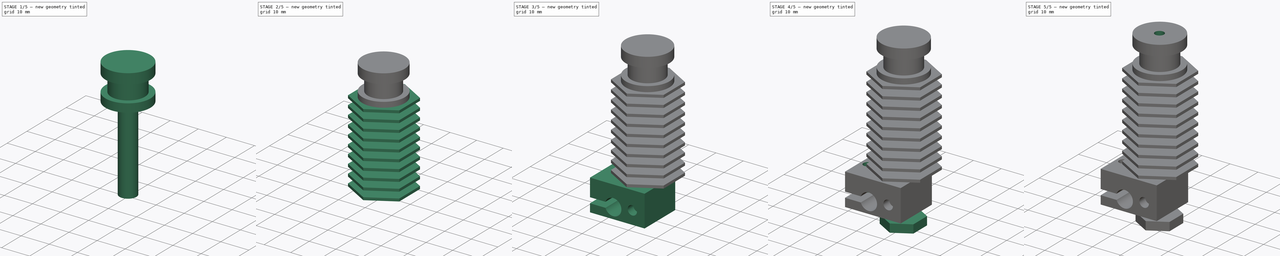
[diagram: build sequence overview — one tinted view per stage of 5, left to right]
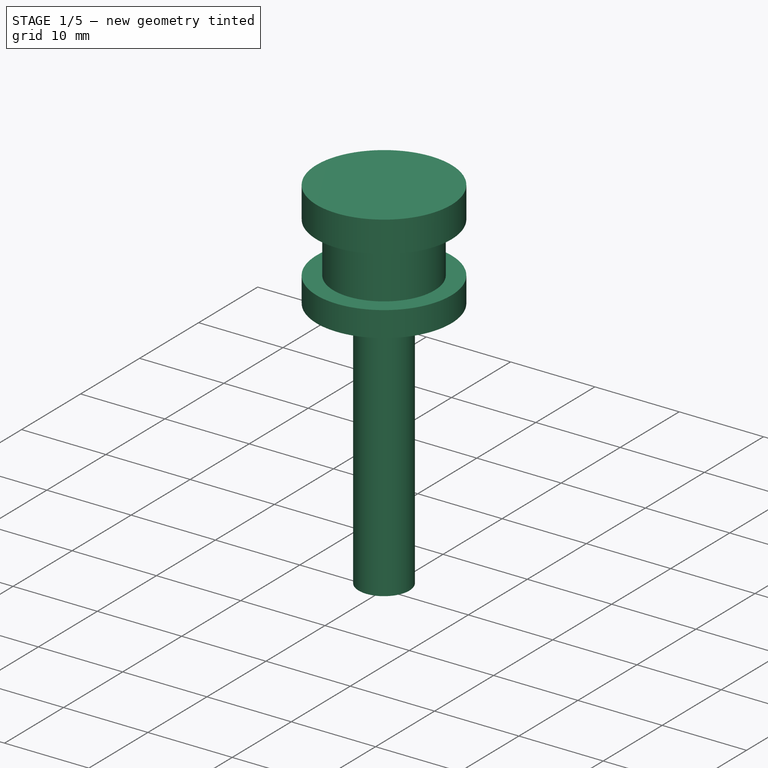
[diagram: stage 1 of 5 — iso view after this stage's code; geometry added in this stage tinted green]
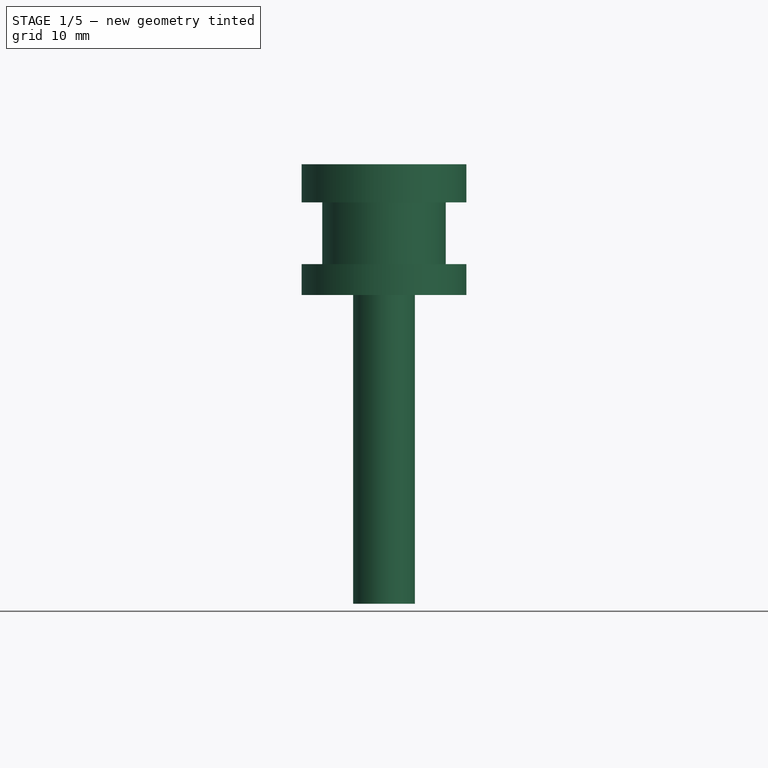
[diagram: stage 1 of 5 — front view after this stage's code; geometry added in this stage tinted green]
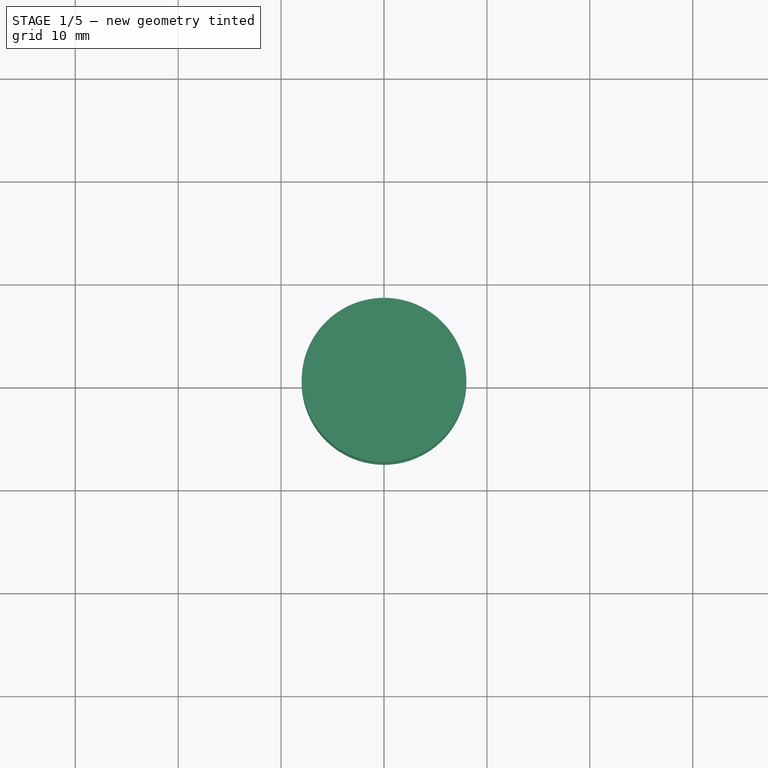
[diagram: stage 1 of 5 — top view after this stage's code; geometry added in this stage tinted green]
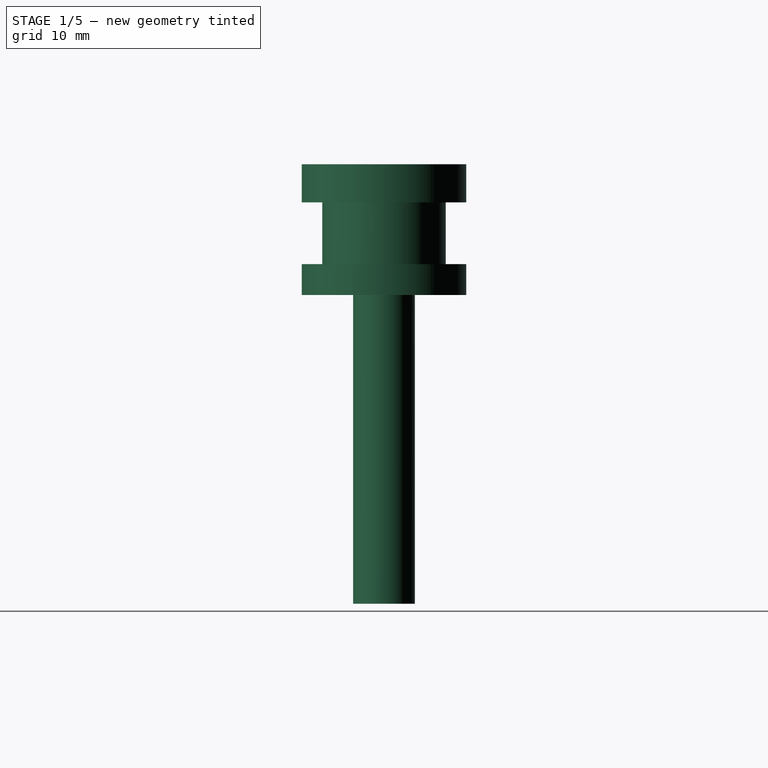
[diagram: stage 1 of 5 — right view after this stage's code; geometry added in this stage tinted green]
FCSTD DOCUMENT  (FreeCAD 0.15R4671 (Git))
Label: Hotend-3d-printer
License: All rights reserved
LicenseURL: http://en.wikipedia.org/wiki/All_rights_reserved
objects: Sketcher::SketchObject×16, PartDesign::Pad×10, PartDesign::Pocket×6, PartDesign::LinearPattern×1, PartDesign::Chamfer×1
note: 50 computed .brp shape members not serialized (recipe doc carries the construction recipe); baked Part::Feature solids carry a one-line shape summary decoded from their .brp

FEATURE [Sketcher::SketchObject] Sketch
  sketch-geometry (1):
    g0: Circle CenterX=0 CenterY=0 CenterZ=0 NormalX=0 NormalY=0 NormalZ=1 Radius=8
  constraints (1):
    c: Radius(g0) = 8
FEATURE [PartDesign::Pad] Pad
  Length = 3.7
  Length2 = 100
  Sketch = -> Sketch
  Type = 0
FEATURE [Sketcher::SketchObject] Sketch001
  Placement = pos=(0,0,0) rot=(1,0,0;3.14159rad)
  Support = -> Pad [Face2]
  sketch-geometry (1):
    g0: Circle CenterX=0 CenterY=0 CenterZ=0 NormalX=0 NormalY=0 NormalZ=1 Radius=6
  constraints (2):
    c: Coincident(g0,g-1)
    c: Radius(g0) = 6
FEATURE [PartDesign::Pad] Pad001
  Length = 6
  Length2 = 100
  Sketch = -> Sketch001
  Type = 0
FEATURE [Sketcher::SketchObject] Sketch002
  Placement = pos=(0,0,-6) rot=(1,0,0;3.14159rad)
  Support = -> Pad001 [Face5]
  sketch-geometry (1):
    g0: Circle CenterX=0 CenterY=0 CenterZ=0 NormalX=0 NormalY=0 NormalZ=1 Radius=8
  constraints (2):
    c: Coincident(g0,g-1)
    c: Radius(g0) = 8
FEATURE [PartDesign::Pad] Pad002
  Length = 3
  Length2 = 100
  Sketch = -> Sketch002
  Type = 0
FEATURE [Sketcher::SketchObject] Sketch003
  Placement = pos=(0,0,-9) rot=(1,0,0;3.14159rad)
  Support = -> Pad002 [Face7]
  sketch-geometry (1):
    g0: Circle CenterX=0 CenterY=0 CenterZ=0 NormalX=0 NormalY=0 NormalZ=1 Radius=3
  constraints (2):
    c: Coincident(g0,g-1)
    c: Radius(g0) = 3
FEATURE [PartDesign::Pad] Pad003
  Length = 30
  Length2 = 100
  Sketch = -> Sketch003
  Type = 0
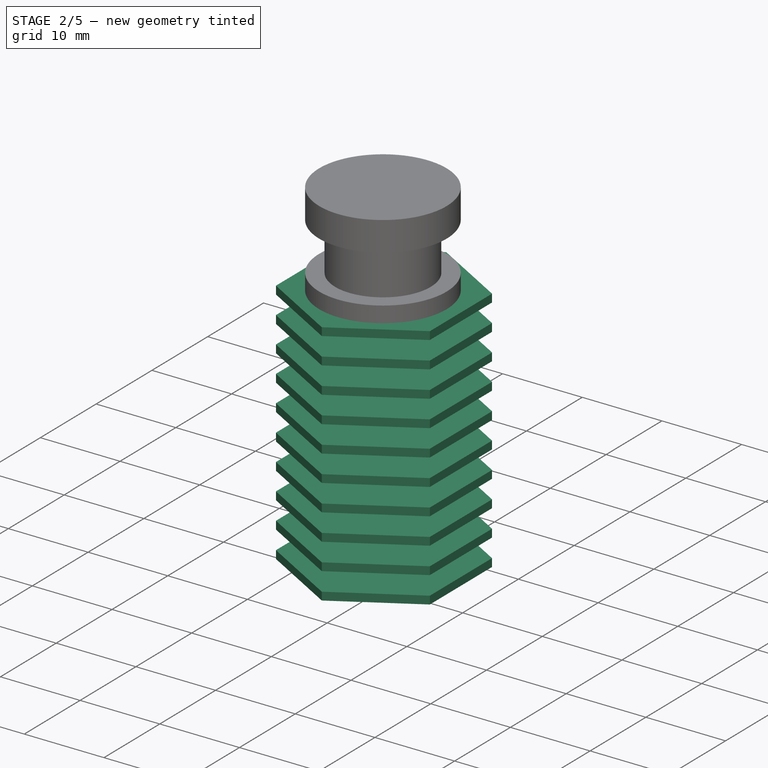
[diagram: stage 2 of 5 — iso view after this stage's code; geometry added in this stage tinted green]
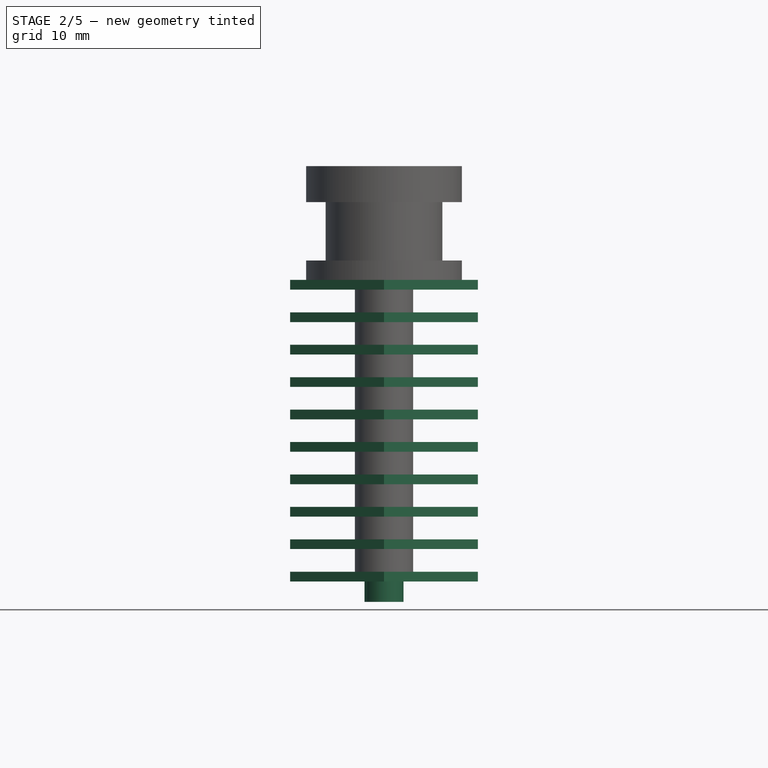
[diagram: stage 2 of 5 — front view after this stage's code; geometry added in this stage tinted green]
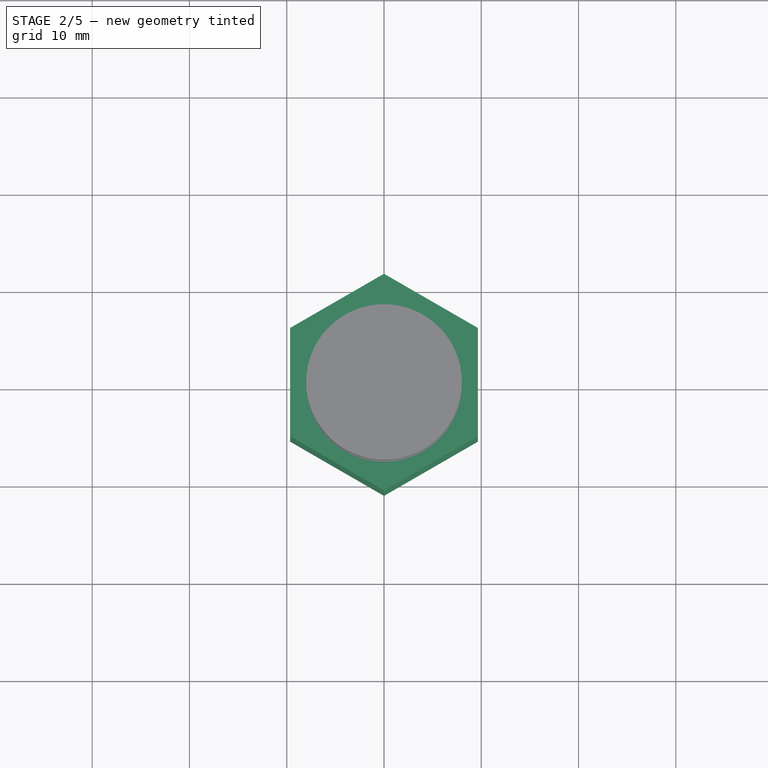
[diagram: stage 2 of 5 — top view after this stage's code; geometry added in this stage tinted green]
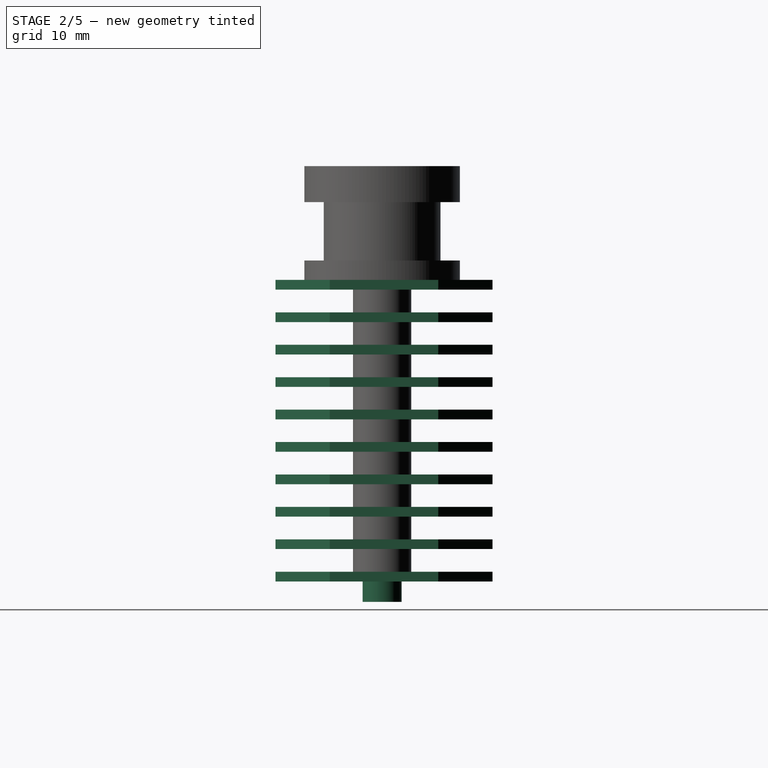
[diagram: stage 2 of 5 — right view after this stage's code; geometry added in this stage tinted green]
FEATURE [Sketcher::SketchObject] Sketch004
  Placement = pos=(0,0,-39) rot=(1,0,0;3.14159rad)
  Support = -> Pad003 [Face9]
  sketch-geometry (7):
    g0: LineSegment StartX=9.65618 StartY=-5.76845 StartZ=0 EndX=9.65618 EndY=5.38155 EndZ=0
    g1: LineSegment StartX=9.65618 StartY=5.38155 StartZ=0 EndX=0 EndY=10.9566 EndZ=0
    g2: LineSegment StartX=0 StartY=10.9566 StartZ=0 EndX=-9.65618 EndY=5.38155 EndZ=0
    g3: LineSegment StartX=-9.65618 StartY=5.38155 StartZ=0 EndX=-9.65618 EndY=-5.76845 EndZ=0
    g4: LineSegment StartX=-9.65618 StartY=-5.76845 StartZ=0 EndX=0 EndY=-11.3434 EndZ=0
    g5: LineSegment StartX=0 StartY=-11.3434 StartZ=0 EndX=9.65618 EndY=-5.76845 EndZ=0
    g6: Circle [constr] CenterX=0 CenterY=-0.193449 CenterZ=0 NormalX=0 NormalY=0 NormalZ=1 Radius=11.15
  constraints (17):
    c: Coincident(g0,g1)
    c: Coincident(g1,g2)
    c: Coincident(g2,g3)
    c: Coincident(g3,g4)
    c: Coincident(g4,g5)
    c: Coincident(g5,g0)
    c: Equal(g0, g1-g5) x5
    c: PointOnObject(g0,g6)
    c: PointOnObject(g1,g6)
    c: PointOnObject(g2,g6)
    c: PointOnObject(g3,g6)
    c: PointOnObject(g4,g6)
    c: PointOnObject(g5,g6)
    c: Coincident(g3,g-1)
    c: PointOnObject(g1,g-2)
    c: PointOnObject(g4,g-2)
    c: Radius(g6) = 11.15
FEATURE [PartDesign::Pad] Pad004  label="Ailette"
  Length = 1
  Length2 = 100
  Reversed = true
  Sketch = -> Sketch004
  Type = 0
FEATURE [PartDesign::LinearPattern] LinearPattern
  Direction = -> Pad004 [Face16]
  Length = 30
  Occurrences = 10
  Originals = -> [Pad004]
FEATURE [Sketcher::SketchObject] Sketch005
  Placement = pos=(0,0,-39) rot=(1,0,0;3.14159rad)
  Support = -> LinearPattern [Face97]
  sketch-geometry (1):
    g0: Circle CenterX=0 CenterY=0 CenterZ=0 NormalX=0 NormalY=0 NormalZ=1 Radius=2
  constraints (2):
    c: Coincident(g0,g-1)
    c: Radius(g0) = 2
FEATURE [PartDesign::Pad] Pad005
  Length = 2.1
  Length2 = 100
  Sketch = -> Sketch005
  Type = 0
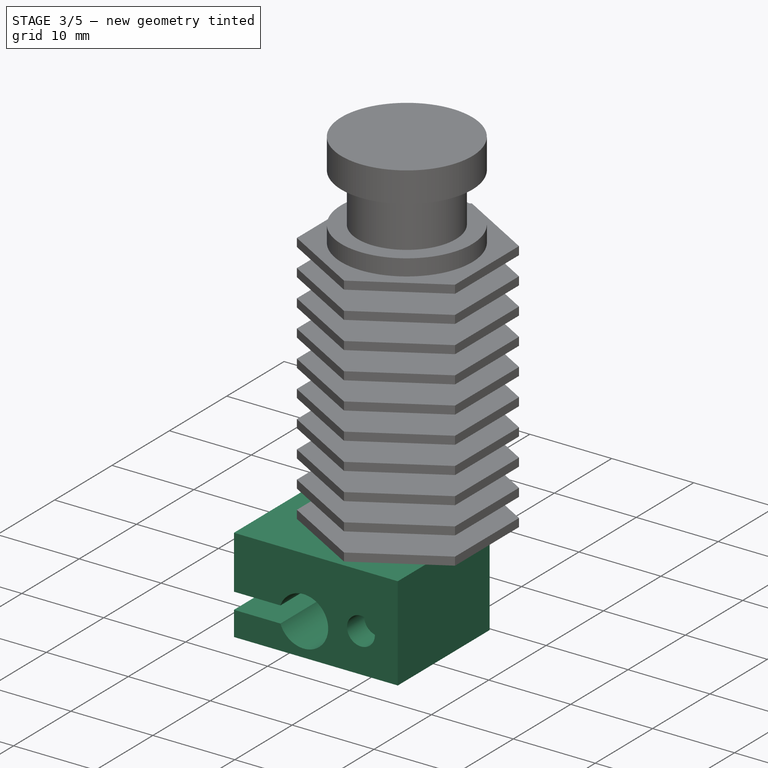
[diagram: stage 3 of 5 — iso view after this stage's code; geometry added in this stage tinted green]
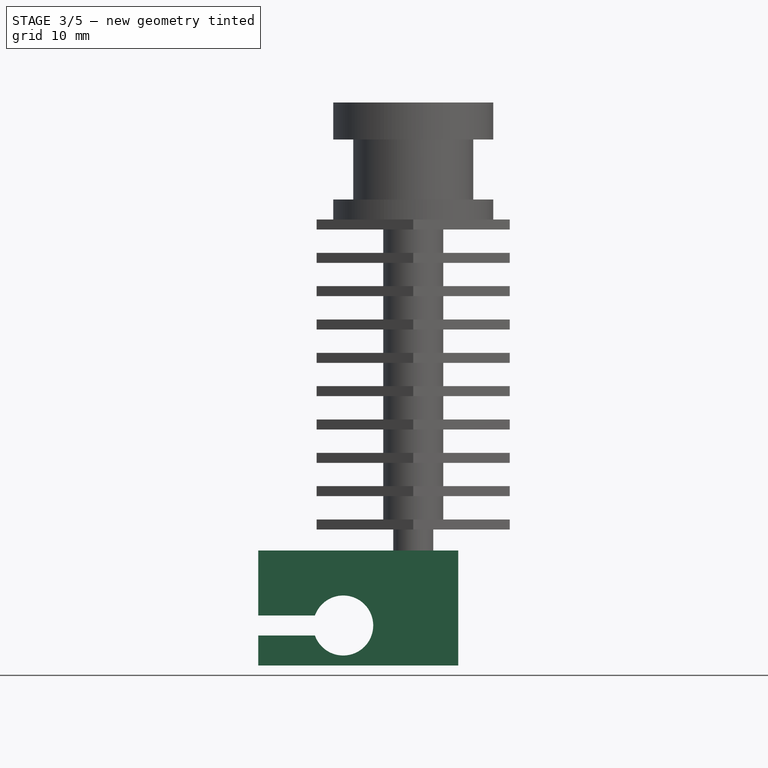
[diagram: stage 3 of 5 — front view after this stage's code; geometry added in this stage tinted green]
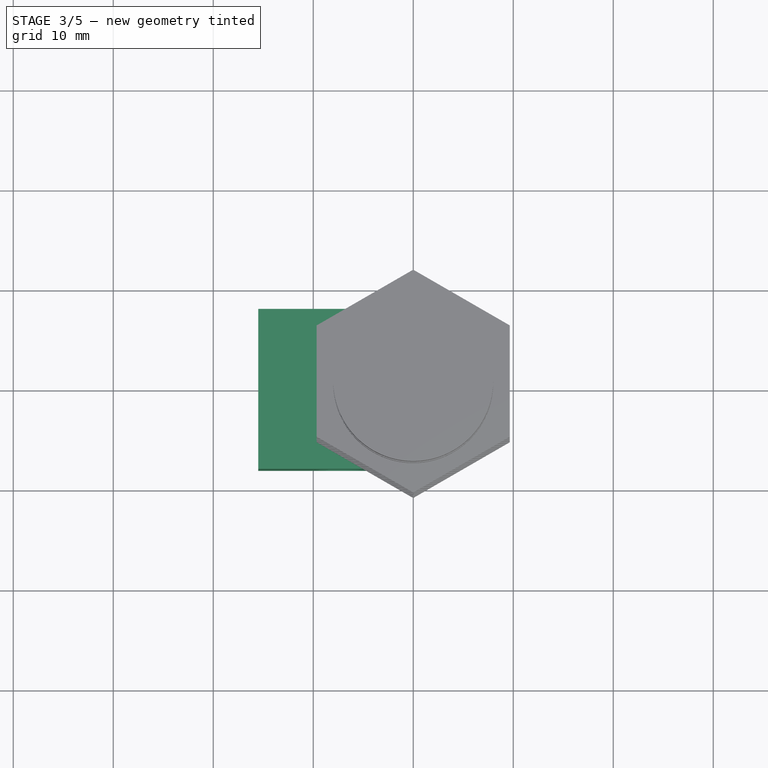
[diagram: stage 3 of 5 — top view after this stage's code; geometry added in this stage tinted green]
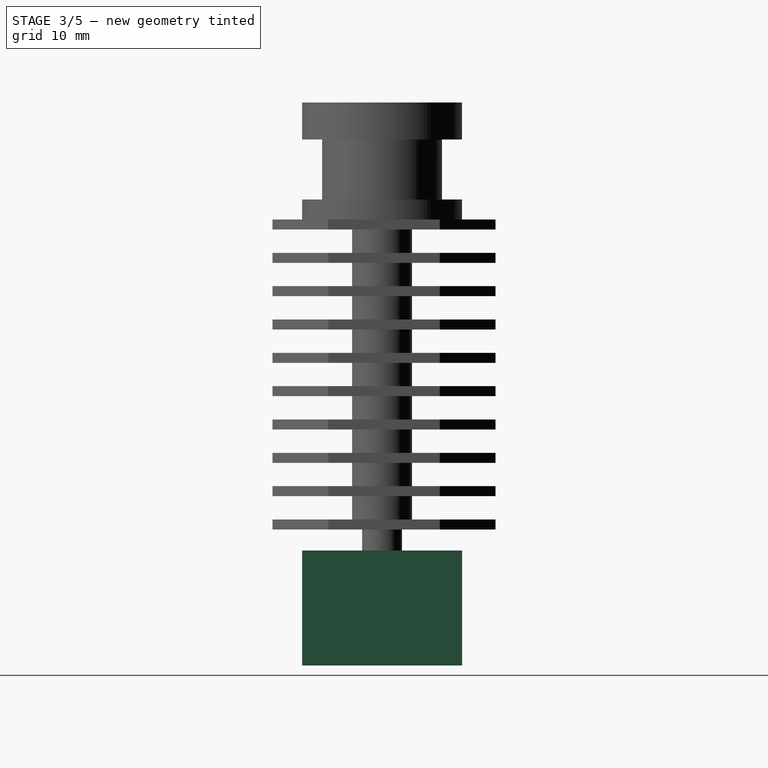
[diagram: stage 3 of 5 — right view after this stage's code; geometry added in this stage tinted green]
FEATURE [Sketcher::SketchObject] Sketch006
  Placement = pos=(0,0,-41.1) rot=(1,0,0;3.14159rad)
  Support = -> Pad005 [Face99]
  sketch-geometry (4):
    g0: LineSegment StartX=-15.5 StartY=8 StartZ=0 EndX=4.5 EndY=8 EndZ=0
    g1: LineSegment StartX=4.5 StartY=8 StartZ=0 EndX=4.5 EndY=-8 EndZ=0
    g2: LineSegment StartX=4.5 StartY=-8 StartZ=0 EndX=-15.5 EndY=-8 EndZ=0
    g3: LineSegment StartX=-15.5 StartY=-8 StartZ=0 EndX=-15.5 EndY=8 EndZ=0
  constraints (12):
    c: Coincident(g0,g1)
    c: Coincident(g1,g2)
    c: Coincident(g2,g3)
    c: Coincident(g3,g0)
    c: Horizontal(g0)
    c: Horizontal(g2)
    c: Vertical(g1)
    c: Vertical(g3)
    c: DistanceY(g-1,g0) = 8
    c: DistanceX(g2,g1) = 20
    c: DistanceY(g2,g0) = 16
    c: DistanceX(g-1,g0) = 4.5
FEATURE [PartDesign::Pad] Pad006
  Length = 11.5
  Length2 = 100
  Sketch = -> Sketch006
  Type = 0
FEATURE [Sketcher::SketchObject] Sketch007
  ExternalGeometry = -> [Pad006]
  Placement = pos=(0,-8,0) rot=(1,0,0;1.5708rad)
  Support = -> Pad006 [Face100]
  sketch-geometry (1):
    g0: Circle CenterX=-7 CenterY=-48.6 CenterZ=0 NormalX=0 NormalY=0 NormalZ=1 Radius=3
  constraints (3):
    c: Radius(g0) = 3
    c: DistanceX(g0,g-3) = 11.5
    c: DistanceY(g0,g-4) = -4
FEATURE [PartDesign::Pocket] Pocket
  Length = 5
  Sketch = -> Sketch007
  Type = 1
FEATURE [Sketcher::SketchObject] Sketch008
  ExternalGeometry = -> [Pocket]
  Placement = pos=(0,-8,0) rot=(1,0,0;1.5708rad)
  Support = -> Pocket [Face100]
  sketch-geometry (1):
    g0: Circle CenterX=0 CenterY=-47.8 CenterZ=0 NormalX=0 NormalY=0 NormalZ=1 Radius=1.7
  constraints (3):
    c: PointOnObject(g0,g-2)
    c: Radius(g0) = 1.7
    c: DistanceY(g0,g-3) = -4.8
FEATURE [PartDesign::Pocket] Pocket001
  Length = 3
  Sketch = -> Sketch008
  Type = 0
FEATURE [Sketcher::SketchObject] Sketch009
  ExternalGeometry = -> [Pocket001]
  Placement = pos=(-15.5,0,0) rot=(0.57735,-0.57735,-0.57735;2.0944rad)
  Support = -> Pocket001 [Face101]
  sketch-geometry (4):
    g0: LineSegment StartX=-8 StartY=-47.6 StartZ=0 EndX=8 EndY=-47.6 EndZ=0
    g1: LineSegment StartX=8 StartY=-47.6 StartZ=0 EndX=8 EndY=-49.6 EndZ=0
    g2: LineSegment StartX=8 StartY=-49.6 StartZ=0 EndX=-8 EndY=-49.6 EndZ=0
    g3: LineSegment StartX=-8 StartY=-49.6 StartZ=0 EndX=-8 EndY=-47.6 EndZ=0
  constraints (12):
    c: Coincident(g0,g1)
    c: Coincident(g1,g2)
    c: Coincident(g2,g3)
    c: Coincident(g3,g0)
    c: Horizontal(g0)
    c: Horizontal(g2)
    c: Vertical(g1)
    c: Vertical(g3)
    c: PointOnObject(g0,g-3)
    c: PointOnObject(g1,g-4)
    c: DistanceY(g2,g-3) = -3
    c: DistanceY(g2,g0) = 2
FEATURE [PartDesign::Pocket] Pocket002
  Length = 6
  Sketch = -> Sketch009
  Type = 0
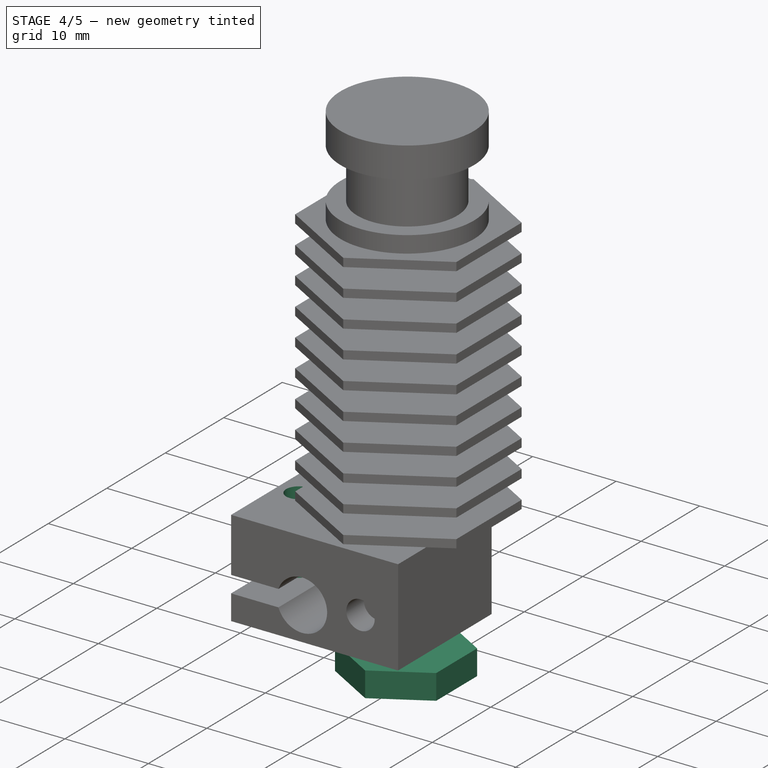
[diagram: stage 4 of 5 — iso view after this stage's code; geometry added in this stage tinted green]
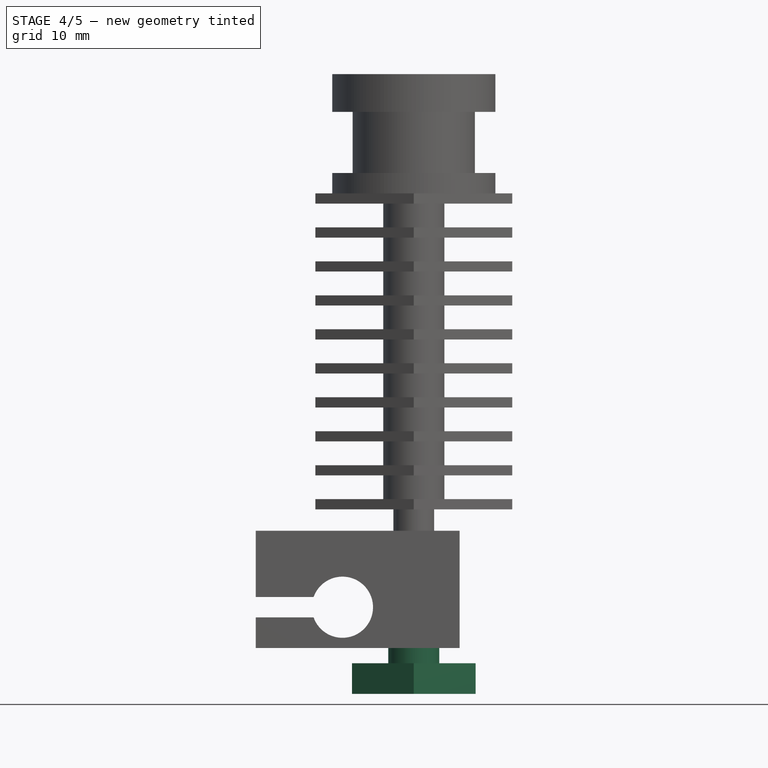
[diagram: stage 4 of 5 — front view after this stage's code; geometry added in this stage tinted green]
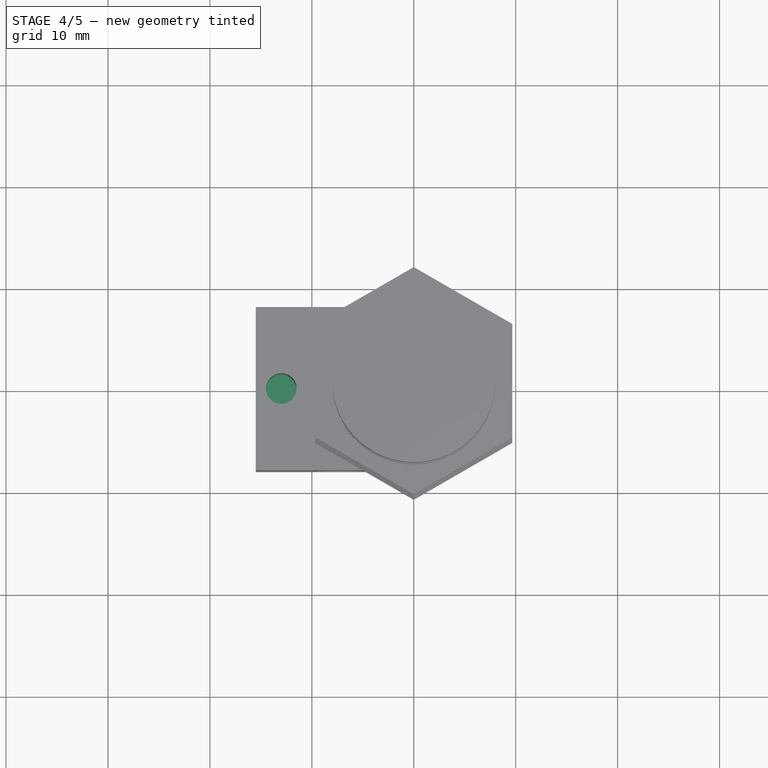
[diagram: stage 4 of 5 — top view after this stage's code; geometry added in this stage tinted green]
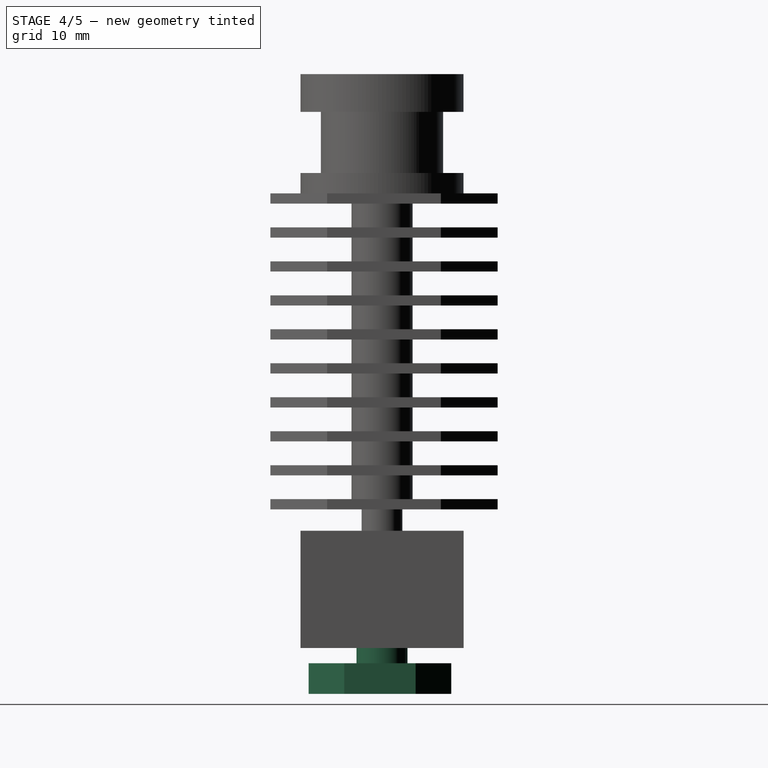
[diagram: stage 4 of 5 — right view after this stage's code; geometry added in this stage tinted green]
FEATURE [Sketcher::SketchObject] Sketch010
  ExternalGeometry = -> [Pocket002]
  Placement = pos=(0,0,-41.1) rot=(0,0,1;0rad)
  Support = -> Pocket002 [Face99]
  sketch-geometry (1):
    g0: Circle CenterX=-13 CenterY=0 CenterZ=0 NormalX=0 NormalY=0 NormalZ=1 Radius=1.5
  constraints (3):
    c: PointOnObject(g0,g-1)
    c: Radius(g0) = 1.5
    c: DistanceX(g0,g-3) = 17.5
FEATURE [PartDesign::Pocket] Pocket003
  Length = 10
  Sketch = -> Sketch010
  Type = 0
FEATURE [Sketcher::SketchObject] Sketch011
  Placement = pos=(0,0,-52.6) rot=(1,0,0;3.14159rad)
  Support = -> Pocket003 [Face105]
  sketch-geometry (1):
    g0: Circle CenterX=0 CenterY=0 CenterZ=0 NormalX=0 NormalY=0 NormalZ=1 Radius=2.5
  constraints (2):
    c: Coincident(g0,g-1)
    c: Radius(g0) = 2.5
FEATURE [PartDesign::Pad] Pad007
  Length = 1.5
  Length2 = 100
  Sketch = -> Sketch011
  Type = 0
FEATURE [Sketcher::SketchObject] Sketch012
  Placement = pos=(0,0,-54.1) rot=(1,0,0;3.14159rad)
  Support = -> Pad007 [Face115]
  sketch-geometry (7):
    g0: LineSegment StartX=6.06218 StartY=-3.29338 StartZ=0 EndX=6.06218 EndY=3.70662 EndZ=0
    g1: LineSegment StartX=6.06218 StartY=3.70662 StartZ=0 EndX=0 EndY=7.20662 EndZ=0
    g2: LineSegment StartX=0 StartY=7.20662 StartZ=0 EndX=-6.06218 EndY=3.70662 EndZ=0
    g3: LineSegment StartX=-6.06218 StartY=3.70662 StartZ=0 EndX=-6.06218 EndY=-3.29338 EndZ=0
    g4: LineSegment StartX=-6.06218 StartY=-3.29338 StartZ=0 EndX=0 EndY=-6.79338 EndZ=0
    g5: LineSegment StartX=0 StartY=-6.79338 StartZ=0 EndX=6.06218 EndY=-3.29338 EndZ=0
    g6: Circle [constr] CenterX=0 CenterY=0.206623 CenterZ=0 NormalX=0 NormalY=0 NormalZ=1 Radius=7
  constraints (17):
    c: Coincident(g0,g1)
    c: Coincident(g1,g2)
    c: Coincident(g2,g3)
    c: Coincident(g3,g4)
    c: Coincident(g4,g5)
    c: Coincident(g5,g0)
    c: Equal(g0, g1-g5) x5
    c: PointOnObject(g0,g6)
    c: PointOnObject(g1,g6)
    c: PointOnObject(g2,g6)
    c: PointOnObject(g3,g6)
    c: PointOnObject(g4,g6)
    c: PointOnObject(g5,g6)
    c: Coincident(g3,g-1)
    c: PointOnObject(g1,g-2)
    c: PointOnObject(g4,g-2)
    c: Distance(g4) = 7
FEATURE [PartDesign::Pad] Pad008
  Length = 3
  Length2 = 100
  Sketch = -> Sketch012
  Type = 0
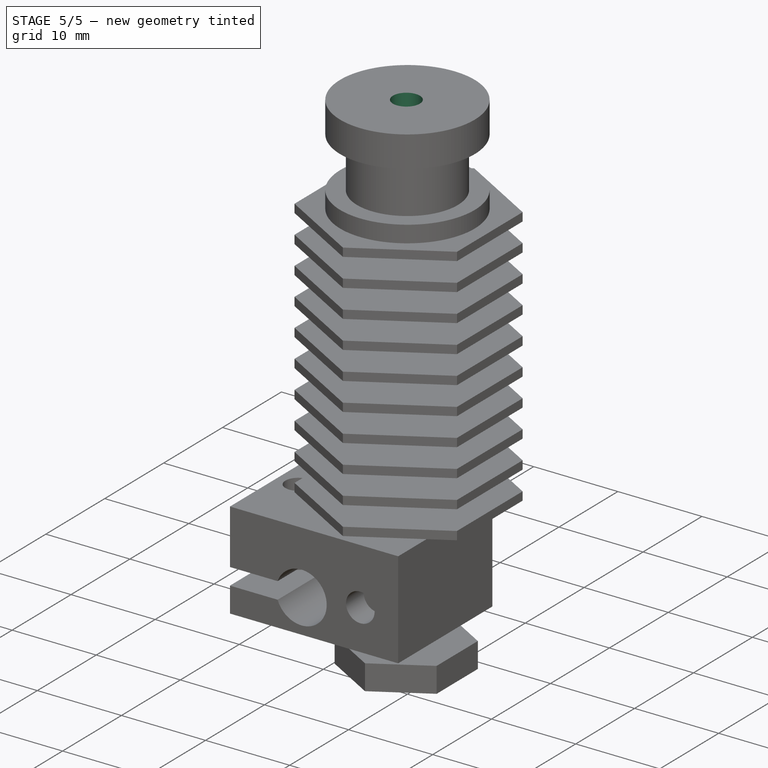
[diagram: stage 5 of 5 — iso view after this stage's code; geometry added in this stage tinted green]
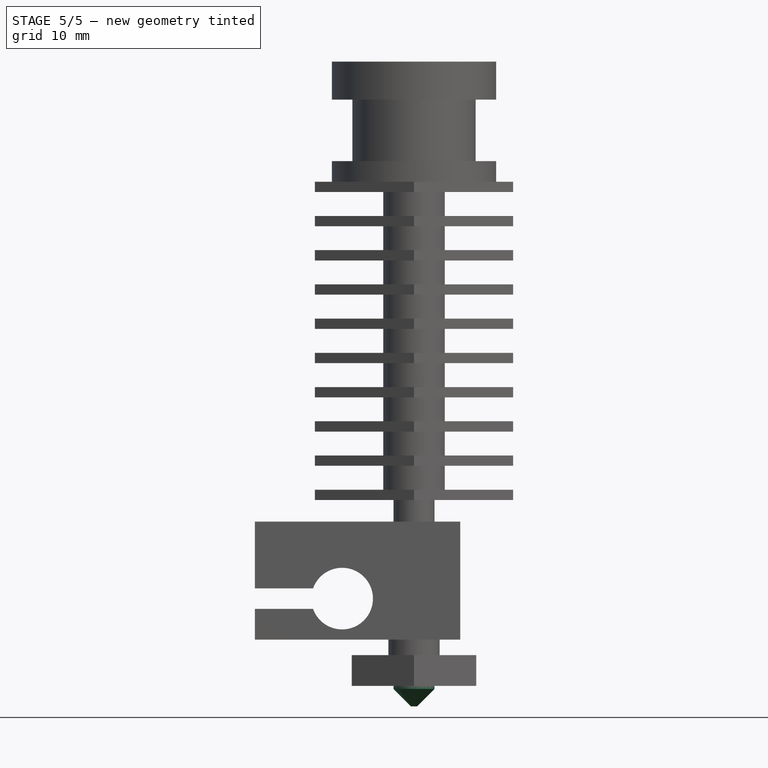
[diagram: stage 5 of 5 — front view after this stage's code; geometry added in this stage tinted green]
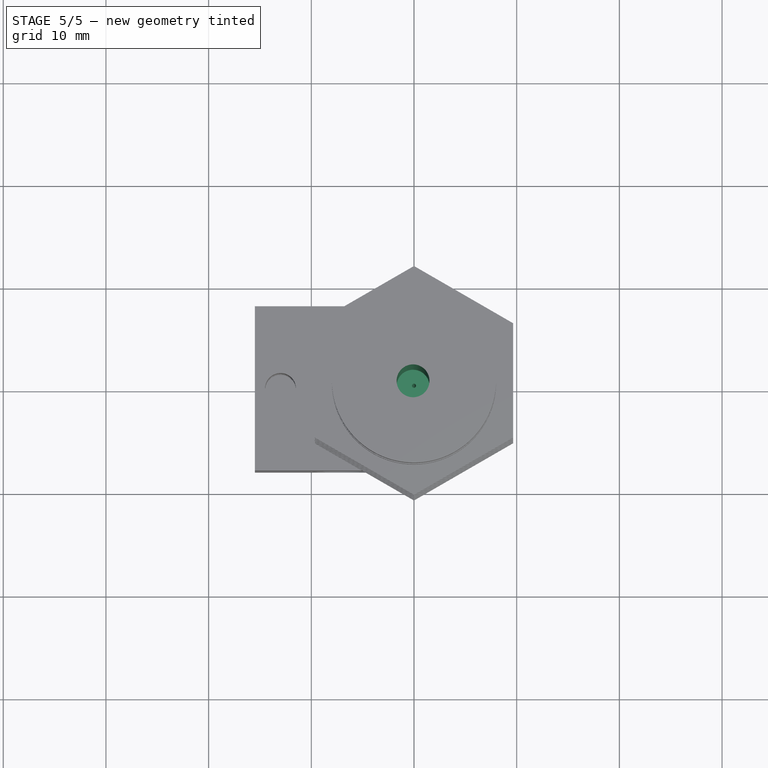
[diagram: stage 5 of 5 — top view after this stage's code; geometry added in this stage tinted green]
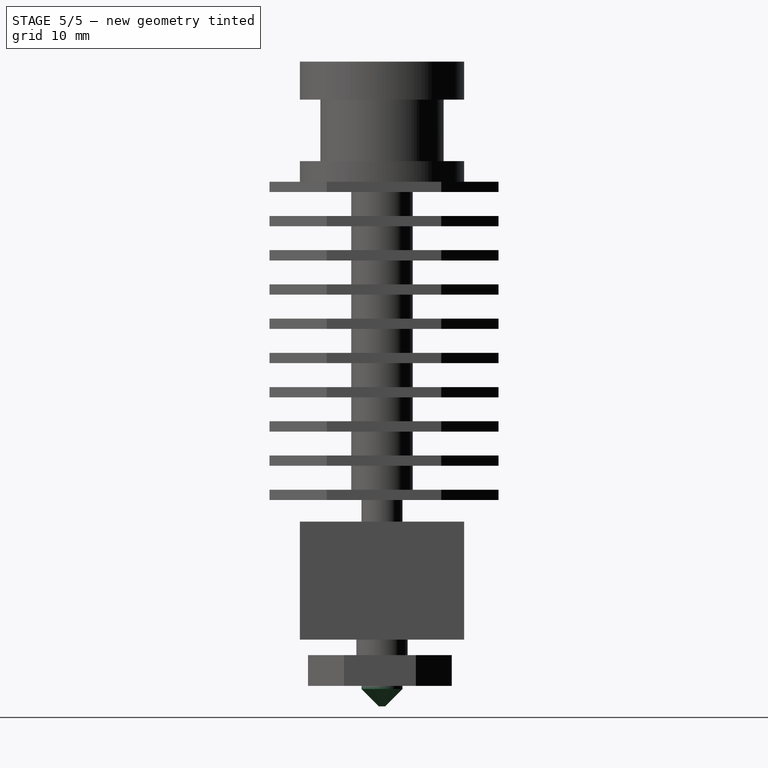
[diagram: stage 5 of 5 — right view after this stage's code; geometry added in this stage tinted green]
FEATURE [Sketcher::SketchObject] Sketch013
  Placement = pos=(0,0,-57.1) rot=(1,0,0;3.14159rad)
  Support = -> Pad008 [Face123]
  sketch-geometry (1):
    g0: Circle CenterX=0 CenterY=0 CenterZ=0 NormalX=0 NormalY=0 NormalZ=1 Radius=2
  constraints (2):
    c: Coincident(g0,g-1)
    c: Radius(g0) = 2
FEATURE [PartDesign::Pad] Pad009
  Length = 2
  Length2 = 100
  Sketch = -> Sketch013
  Type = 0
FEATURE [PartDesign::Chamfer] Chamfer
  Base = -> Pad009 [Edge281]
  Size = 1.7
FEATURE [Sketcher::SketchObject] Sketch014
  Placement = pos=(0,0,3.7) rot=(0,0,1;0rad)
  Support = -> Chamfer [Face126]
  sketch-geometry (1):
    g0: Circle CenterX=-0.093588 CenterY=-0.043487 CenterZ=0 NormalX=0 NormalY=0 NormalZ=1 Radius=1.6
  constraints (1):
    c: Radius(g0) = 1.6
FEATURE [PartDesign::Pocket] Pocket004
  Length = 30
  Sketch = -> Sketch014
  Type = 0
FEATURE [Sketcher::SketchObject] Sketch015
  Placement = pos=(0,0,3.7) rot=(0,0,1;0rad)
  Support = -> Pocket004 [Face126]
  sketch-geometry (1):
    g0: Circle CenterX=0 CenterY=0 CenterZ=0 NormalX=0 NormalY=0 NormalZ=1 Radius=0.2
  constraints (2):
    c: Coincident(g-1,g0)
    c: Radius(g0) = 0.2
FEATURE [PartDesign::Pocket] Pocket005
  Length = 5
  Sketch = -> Sketch015
  Type = 1
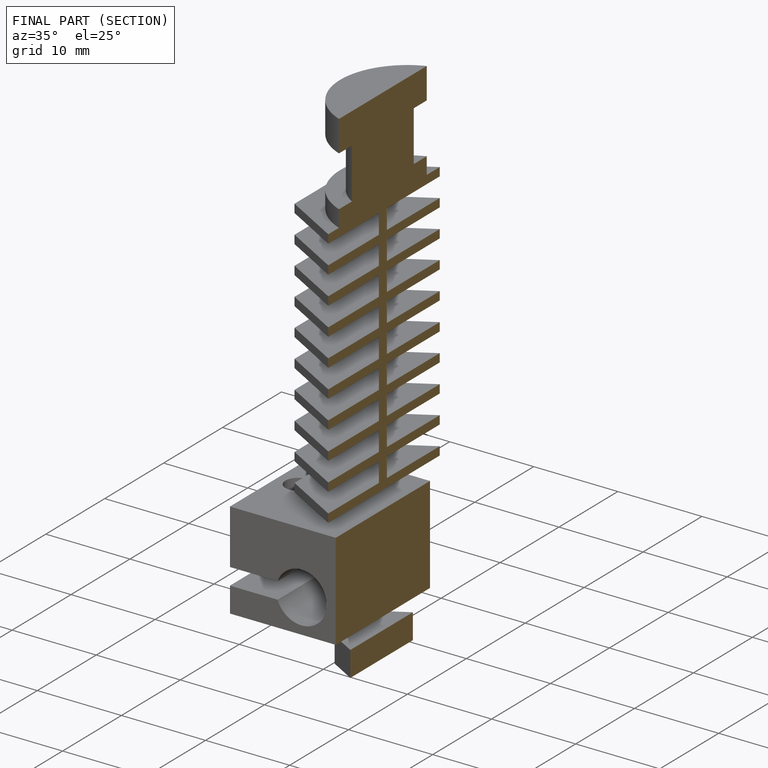
[diagram: finished part — half-section view (interior)]
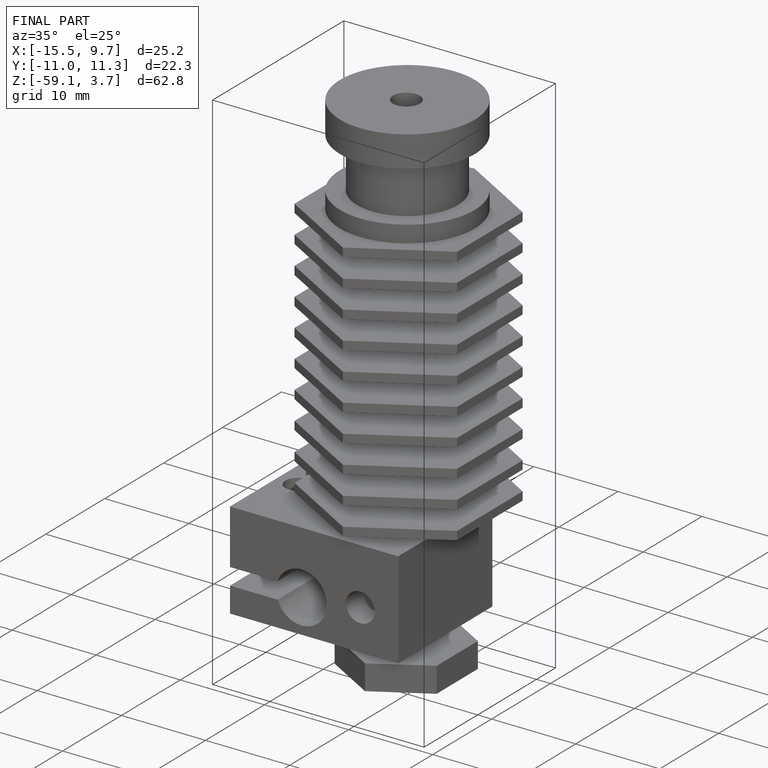
[diagram: finished part — iso view with bounding-box wireframe]
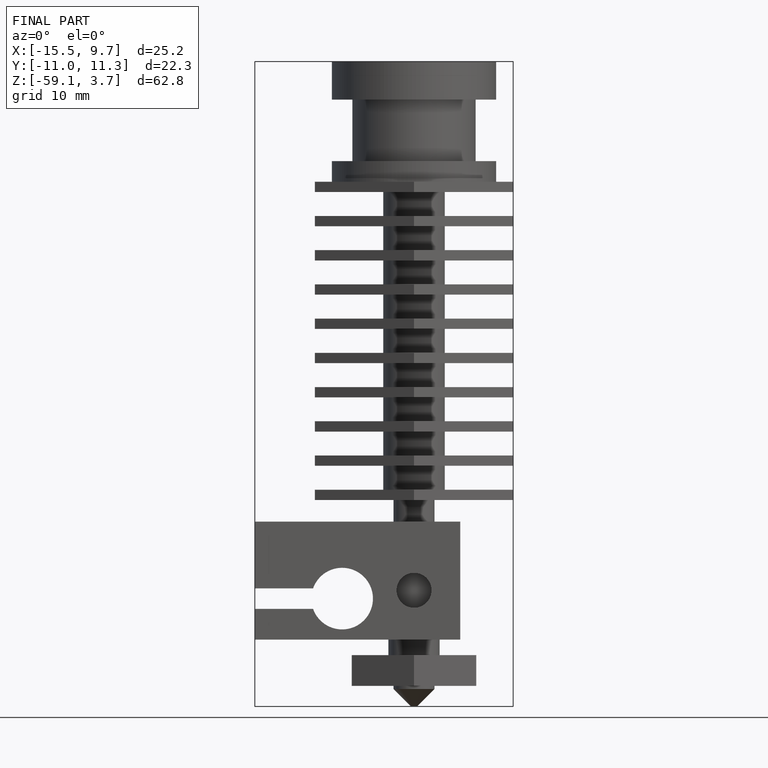
[diagram: finished part — front view with bounding-box wireframe]
